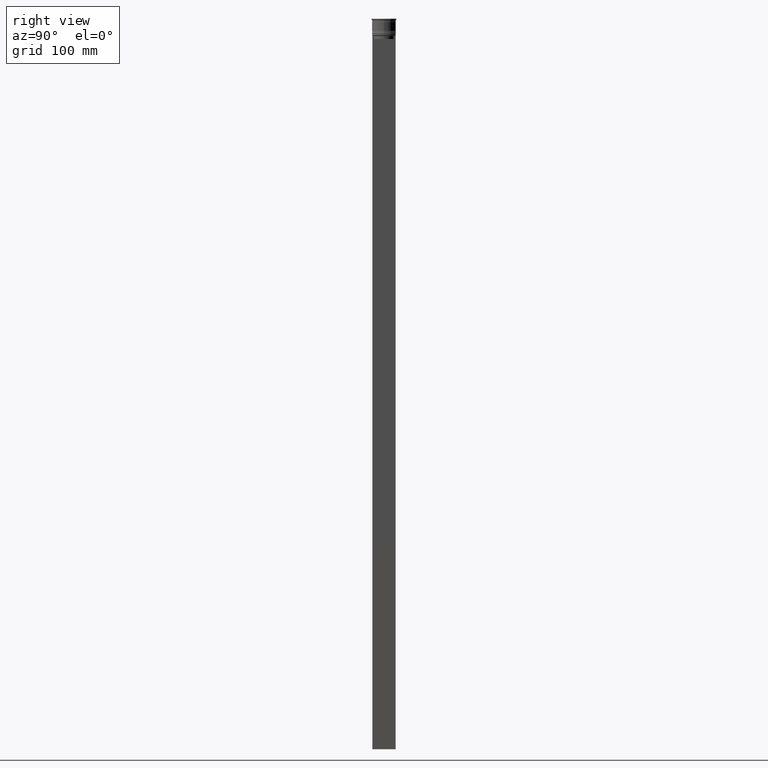
[diagram: clean part render]
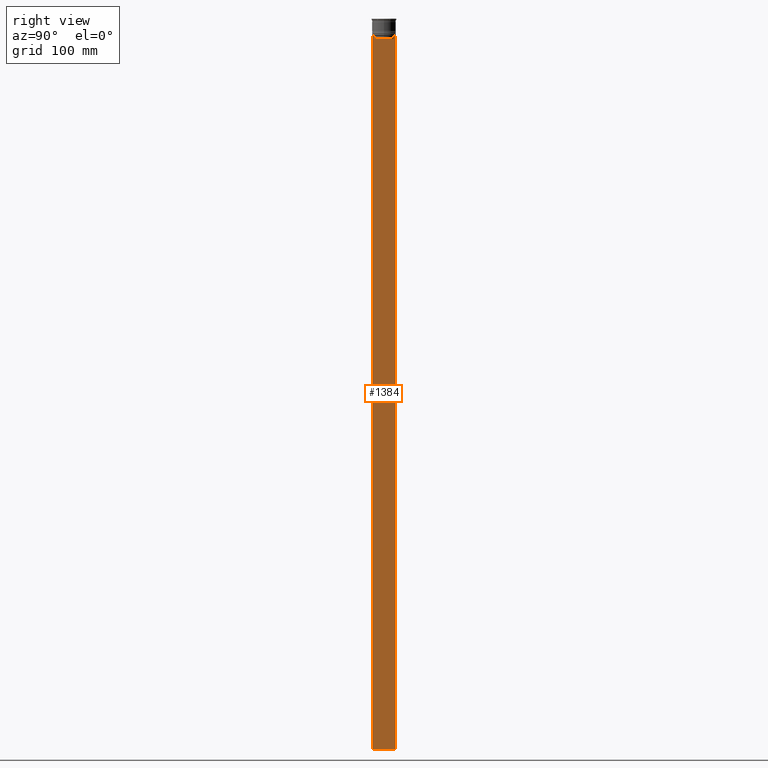
[diagram: same view with one face highlighted and labeled with its STEP entity id]
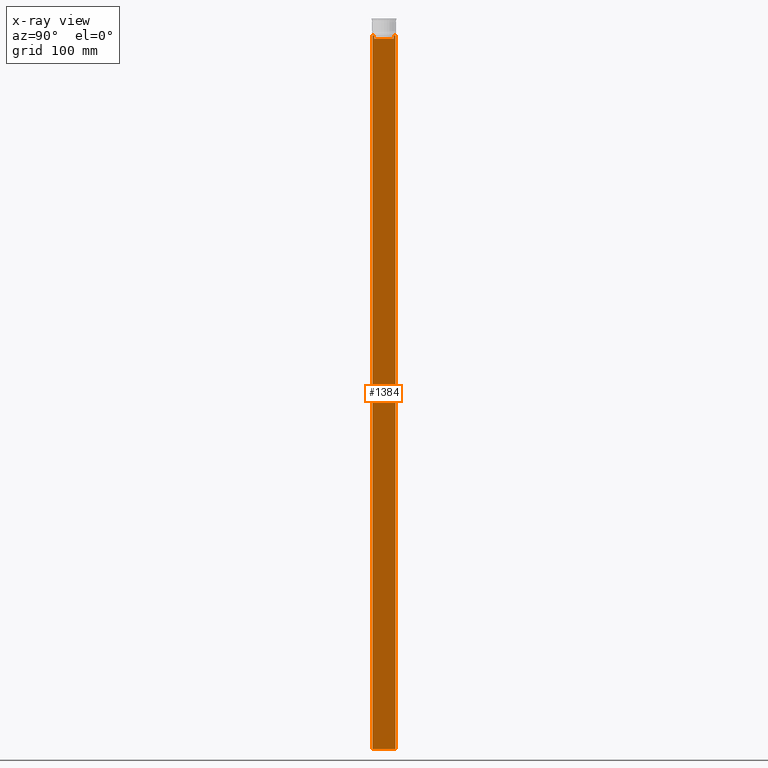
[diagram: x-ray of the same camera — body ghosted, the highlighted face saturated]
A machine part, right view. The second image highlights one B-rep face of the part: STEP entity #1384.
The next image is the same camera in x-ray: the body ghosted, the highlighted face saturated — about 0% of this face is hidden behind the body in this view.
In plain terms, the highlighted planar face has unit normal (-1, 0, 0).
Its self-contained STEP definition (entity closure, byte-faithful):
#68 = VECTOR ( 'NONE', #1834, 1000.000000000000000 ) ;
#106 = CARTESIAN_POINT ( 'NONE',  ( 0.4999999999999998890, -9.749999999999998224, -614.0000000000000000 ) ) ;
#124 = EDGE_CURVE ( 'NONE', #1921, #2378, #385, .T. ) ;
#223 = LINE ( 'NONE', #2224, #1441 ) ;
#294 = CARTESIAN_POINT ( 'NONE',  ( 0.4999999999999998890, -9.749999999999998224, -614.0000000000000000 ) ) ;
#304 = ORIENTED_EDGE ( 'NONE', *, *, #818, .T. ) ;
#308 = ORIENTED_EDGE ( 'NONE', *, *, #659, .T. ) ;
#356 = CARTESIAN_POINT ( 'NONE',  ( 0.4999999999999998890, 8.385105843100616241, -14.50000000000000000 ) ) ;
#375 = DIRECTION ( 'NONE',  ( 0.000000000000000000, 0.000000000000000000, -1.000000000000000000 ) ) ;
#384 = ORIENTED_EDGE ( 'NONE', *, *, #618, .T. ) ;
#385 = LINE ( 'NONE', #2344, #931 ) ;
#386 = FACE_OUTER_BOUND ( 'NONE', #1211, .T. ) ;
#430 = DIRECTION ( 'NONE',  ( 0.000000000000000000, 0.000000000000000000, -1.000000000000000000 ) ) ;
#551 = ORIENTED_EDGE ( 'NONE', *, *, #2020, .T. ) ;
#612 = VERTEX_POINT ( 'NONE', #976 ) ;
#618 = EDGE_CURVE ( 'NONE', #1751, #1443, #2008, .T. ) ;
#638 = CARTESIAN_POINT ( 'NONE',  ( 0.4999999999999998890, 8.385105843100616241, -17.00000000000000000 ) ) ;
#659 = EDGE_CURVE ( 'NONE', #1696, #1115, #1943, .T. ) ;
#694 = VECTOR ( 'NONE', #2261, 1000.000000000000000 ) ;
#696 = VECTOR ( 'NONE', #1977, 1000.000000000000000 ) ;
#750 = CARTESIAN_POINT ( 'NONE',  ( 0.4999999999999998890, -8.719005764482787413, -14.16667454151160044 ) ) ;
#775 = CARTESIAN_POINT ( 'NONE',  ( 0.4999999999999998890, 8.885943956609230199, -14.00000000000000178 ) ) ;
#782 = DIRECTION ( 'NONE',  ( -1.000000000000000000, 0.000000000000000000, 0.000000000000000000 ) ) ;
#791 = PLANE ( 'NONE',  #1183 ) ;
#818 = EDGE_CURVE ( 'NONE', #1726, #612, #2084, .T. ) ;
#893 = CARTESIAN_POINT ( 'NONE',  ( 0.4999999999999998890, -8.385105843100616241, 0.000000000000000000 ) ) ;
#925 = LINE ( 'NONE', #2137, #696 ) ;
#931 = VECTOR ( 'NONE', #1956, 1000.000000000000000 ) ;
#944 = VERTEX_POINT ( 'NONE', #1920 ) ;
#976 = CARTESIAN_POINT ( 'NONE',  ( 0.4999999999999998890, 9.750000000000001776, -614.0000000000000000 ) ) ;
#981 = VECTOR ( 'NONE', #375, 1000.000000000000000 ) ;
#994 = LINE ( 'NONE', #1333, #1062 ) ;
#1008 = CARTESIAN_POINT ( 'NONE',  ( 0.4999999999999998890, -8.385105843100616241, -14.50000000000000000 ) ) ;
#1038 = CARTESIAN_POINT ( 'NONE',  ( 0.4999999999999998890, -9.749999999999998224, -14.00000000000000178 ) ) ;
#1062 = VECTOR ( 'NONE', #1941, 1000.000000000000000 ) ;
#1115 = VERTEX_POINT ( 'NONE', #2212 ) ;
#1135 = CARTESIAN_POINT ( 'NONE',  ( 0.4999999999999998890, -9.749999999999998224, -14.00000000000000178 ) ) ;
#1139 = ORIENTED_EDGE ( 'NONE', *, *, #2231, .F. ) ;
#1162 = DIRECTION ( 'NONE',  ( 0.000000000000000000, 0.000000000000000000, 1.000000000000000000 ) ) ;
#1183 = AXIS2_PLACEMENT_3D ( 'NONE', #2334, #782, #1162 ) ;
#1211 = EDGE_LOOP ( 'NONE', ( #551, #384, #1883, #1344, #1288, #308, #1453, #2009, #304, #1139 ) ) ;
#1288 = ORIENTED_EDGE ( 'NONE', *, *, #2047, .T. ) ;
#1330 = CARTESIAN_POINT ( 'NONE',  ( 0.4999999999999998890, -8.385105843100616241, -14.50000000000000000 ) ) ;
#1333 = CARTESIAN_POINT ( 'NONE',  ( 0.4999999999999998890, 8.385105843100616241, 0.000000000000000000 ) ) ;
#1344 = ORIENTED_EDGE ( 'NONE', *, *, #124, .T. ) ;
#1384 = ADVANCED_FACE ( 'NONE', ( #386 ), #791, .F. ) ;
#1423 = EDGE_CURVE ( 'NONE', #1443, #1921, #994, .T. ) ;
#1436 = VERTEX_POINT ( 'NONE', #1135 ) ;
#1441 = VECTOR ( 'NONE', #430, 1000.000000000000000 ) ;
#1443 = VERTEX_POINT ( 'NONE', #2345 ) ;
#1453 = ORIENTED_EDGE ( 'NONE', *, *, #2366, .T. ) ;
#1535 = CARTESIAN_POINT ( 'NONE',  ( 0.4999999999999998890, -8.885943956609230199, -14.00000000000000178 ) ) ;
#1696 = VERTEX_POINT ( 'NONE', #1008 ) ;
#1726 = VERTEX_POINT ( 'NONE', #294 ) ;
#1751 = VERTEX_POINT ( 'NONE', #2285 ) ;
#1758 = CARTESIAN_POINT ( 'NONE',  ( 0.4999999999999998890, -8.385105843100616241, -17.00000000000000000 ) ) ;
#1834 = DIRECTION ( 'NONE',  ( 0.000000000000000000, -1.000000000000000000, 0.000000000000000000 ) ) ;
#1883 = ORIENTED_EDGE ( 'NONE', *, *, #1423, .T. ) ;
#1920 = CARTESIAN_POINT ( 'NONE',  ( 0.4999999999999998890, 9.750000000000001776, -14.00000000000000178 ) ) ;
#1921 = VERTEX_POINT ( 'NONE', #638 ) ;
#1941 = DIRECTION ( 'NONE',  ( 0.000000000000000000, 0.000000000000000000, -1.000000000000000000 ) ) ;
#1943 = B_SPLINE_CURVE_WITH_KNOTS ( 'NONE', 3,
 ( #1330, #2537, #750, #1535 ),
 .UNSPECIFIED., .F., .F.,
 ( 4, 4 ),
 ( 0.03898465126933130243, 0.03969388910599658260 ),
 .UNSPECIFIED. ) ;
#1956 = DIRECTION ( 'NONE',  ( 0.000000000000000000, -1.000000000000000000, 0.000000000000000000 ) ) ;
#1977 = DIRECTION ( 'NONE',  ( 0.000000000000000000, -1.000000000000000000, 0.000000000000000000 ) ) ;
#2008 = B_SPLINE_CURVE_WITH_KNOTS ( 'NONE', 3,
 ( #775, #2572, #2547, #356 ),
 .UNSPECIFIED., .F., .F.,
 ( 4, 4 ),
 ( 0.01511546479386908018, 0.01582316445439079997 ),
 .UNSPECIFIED. ) ;
#2009 = ORIENTED_EDGE ( 'NONE', *, *, #2480, .T. ) ;
#2020 = EDGE_CURVE ( 'NONE', #944, #1751, #2272, .T. ) ;
#2024 = VECTOR ( 'NONE', #2108, 1000.000000000000000 ) ;
#2047 = EDGE_CURVE ( 'NONE', #2378, #1696, #2053, .T. ) ;
#2053 = LINE ( 'NONE', #893, #694 ) ;
#2084 = LINE ( 'NONE', #106, #2024 ) ;
#2108 = DIRECTION ( 'NONE',  ( 0.000000000000000000, 1.000000000000000000, 0.000000000000000000 ) ) ;
#2137 = CARTESIAN_POINT ( 'NONE',  ( 0.4999999999999998890, -9.749999999999998224, -14.00000000000000178 ) ) ;
#2173 = CARTESIAN_POINT ( 'NONE',  ( 0.4999999999999998890, 9.750000000000001776, 5.525624189766635830 ) ) ;
#2212 = CARTESIAN_POINT ( 'NONE',  ( 0.4999999999999998890, -8.885943956609230199, -14.00000000000000178 ) ) ;
#2224 = CARTESIAN_POINT ( 'NONE',  ( 0.4999999999999998890, -9.749999999999998224, 5.525624189766635830 ) ) ;
#2231 = EDGE_CURVE ( 'NONE', #944, #612, #2564, .T. ) ;
#2261 = DIRECTION ( 'NONE',  ( -0.000000000000000000, -0.000000000000000000, 1.000000000000000000 ) ) ;
#2272 = LINE ( 'NONE', #1038, #68 ) ;
#2285 = CARTESIAN_POINT ( 'NONE',  ( 0.4999999999999998890, 8.885943956609230199, -14.00000000000000178 ) ) ;
#2334 = CARTESIAN_POINT ( 'NONE',  ( 0.4999999999999998890, -9.749999999999998224, 5.525624189766635830 ) ) ;
#2344 = CARTESIAN_POINT ( 'NONE',  ( 0.4999999999999998890, 8.400000000000003908, -17.00000000000000000 ) ) ;
#2345 = CARTESIAN_POINT ( 'NONE',  ( 0.4999999999999998890, 8.385105843100616241, -14.50000000000000000 ) ) ;
#2366 = EDGE_CURVE ( 'NONE', #1115, #1436, #925, .T. ) ;
#2378 = VERTEX_POINT ( 'NONE', #1758 ) ;
#2480 = EDGE_CURVE ( 'NONE', #1436, #1726, #223, .T. ) ;
#2537 = CARTESIAN_POINT ( 'NONE',  ( 0.4999999999999998890, -8.552060194457768105, -14.33334167772667556 ) ) ;
#2547 = CARTESIAN_POINT ( 'NONE',  ( 0.4999999999999998890, 8.552060201981378285, -14.33334167021640582 ) ) ;
#2564 = LINE ( 'NONE', #2173, #981 ) ;
#2572 = CARTESIAN_POINT ( 'NONE',  ( 0.4999999999999998890, 8.719005771582347464, -14.16667453442325453 ) ) ;